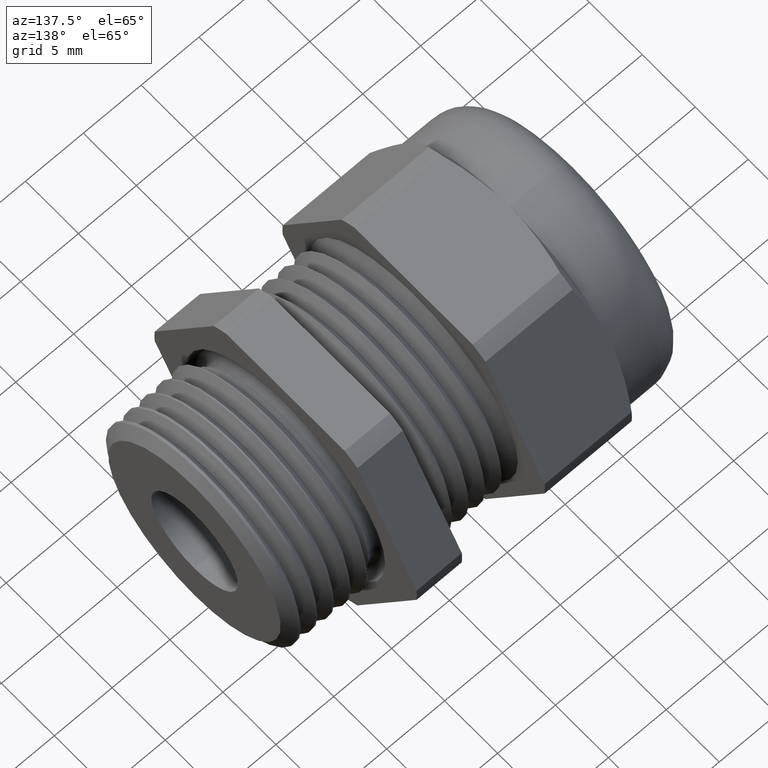
[diagram: clean part render]
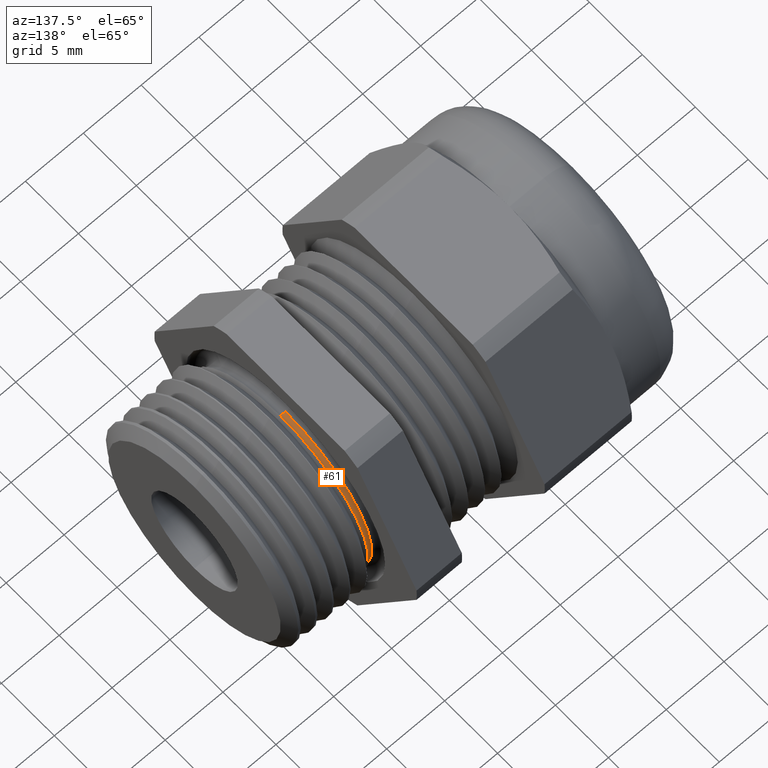
[diagram: same view with one face highlighted and labeled with its STEP entity id]
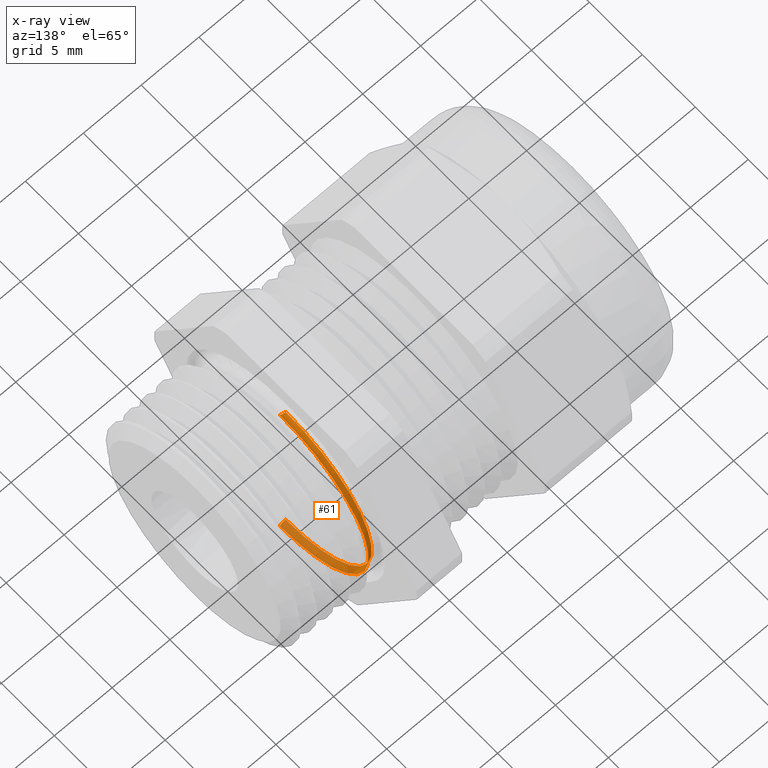
[diagram: x-ray of the same camera — body ghosted, the highlighted face saturated]
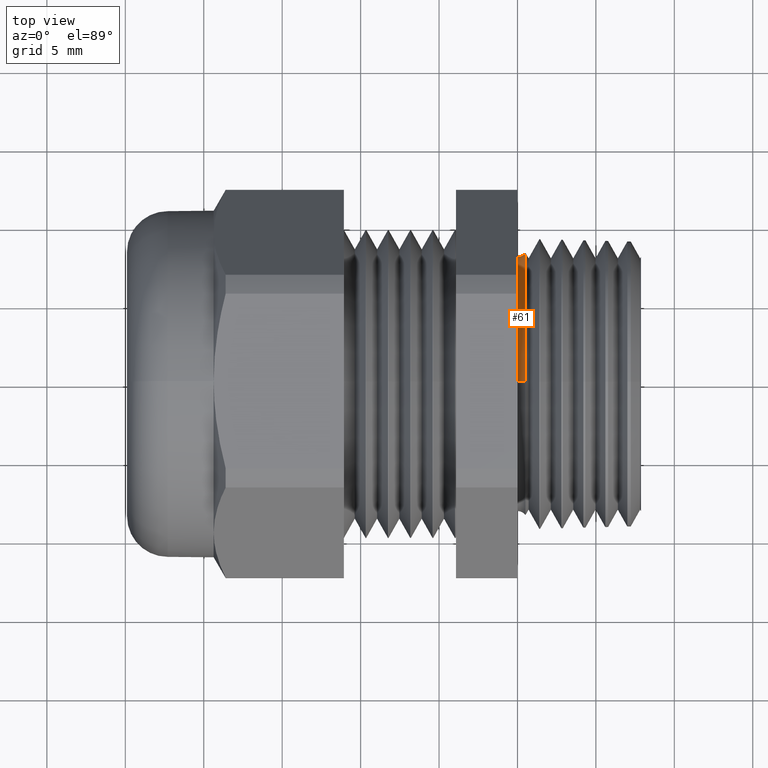
[diagram: same view with one face highlighted and labeled with its STEP entity id]
A machine part, auxiliary view. The second image highlights one B-rep face of the part: STEP entity #61.
The next image is the same camera in x-ray: the body ghosted, the highlighted face saturated — about 42% of this face is hidden behind the body in this view.
A second angle (top view) of the same face is appended — the face is thin or edge-on in the first view.
In plain terms, the highlighted toroidal blend (fillet) surface has major radius 8.763 mm and minor (blend) radius 0.635 mm.
Its self-contained STEP definition (entity closure, byte-faithful):
#2 = ORIENTED_EDGE ( 'NONE', *, *, #3476, .F. ) ;
#14 = ORIENTED_EDGE ( 'NONE', *, *, #15, .T. ) ;
#15 = EDGE_CURVE ( 'NONE', #73, #38, #979, .T. ) ;
#38 = VERTEX_POINT ( 'NONE', #992 ) ;
#61 = ADVANCED_FACE ( 'NONE', ( #1079 ), #1078, .F. ) ;
#70 = ORIENTED_EDGE ( 'NONE', *, *, #71, .T. ) ;
#71 = EDGE_CURVE ( 'NONE', #72, #73, #1063, .T. ) ;
#72 = VERTEX_POINT ( 'NONE', #1058 ) ;
#73 = VERTEX_POINT ( 'NONE', #1057 ) ;
#84 = EDGE_LOOP ( 'NONE', ( #70, #14, #2, #3479 ) ) ;
#975 = DIRECTION ( 'NONE',  ( 0.0000000000000000000, 0.0000000000000000000, -1.000000000000000000 ) ) ;
#976 = DIRECTION ( 'NONE',  ( 1.000000000000000000, 0.0000000000000000000, 0.0000000000000000000 ) ) ;
#977 = CARTESIAN_POINT ( 'NONE',  ( -3.061616997868362800E-018, 0.0000000000000000000, 0.0000000000000000000 ) ) ;
#978 = AXIS2_PLACEMENT_3D ( 'NONE', #977, #976, #975 ) ;
#979 = CIRCLE ( 'NONE', #978, 0.3200000000000001200 ) ;
#992 = CARTESIAN_POINT ( 'NONE',  ( -3.061616997868358500E-018, 3.918869757271532700E-017, 0.3200000000000001200 ) ) ;
#1057 = CARTESIAN_POINT ( 'NONE',  ( -3.061616997868358500E-018, 0.0000000000000000000, -0.3200000000000001200 ) ) ;
#1058 = CARTESIAN_POINT ( 'NONE',  ( 0.02011669327523381600, 4.043255481433096800E-017, -0.3301568651670153700 ) ) ;
#1059 = DIRECTION ( 'NONE',  ( 0.0000000000000000000, 0.0000000000000000000, -1.000000000000000000 ) ) ;
#1060 = DIRECTION ( 'NONE',  ( 0.0000000000000000000, -1.000000000000000000, 0.0000000000000000000 ) ) ;
#1061 = CARTESIAN_POINT ( 'NONE',  ( 0.0000000000000000000, 0.0000000000000000000, -0.3450000000000000300 ) ) ;
#1062 = AXIS2_PLACEMENT_3D ( 'NONE', #1061, #1060, #1059 ) ;
#1063 = CIRCLE ( 'NONE', #1062, 0.02499999999999987000 ) ;
#1073 = DIRECTION ( 'NONE',  ( 0.0000000000000000000, 0.0000000000000000000, -1.000000000000000000 ) ) ;
#1074 = DIRECTION ( 'NONE',  ( 1.000000000000000000, 0.0000000000000000000, 0.0000000000000000000 ) ) ;
#1075 = CARTESIAN_POINT ( 'NONE',  ( 0.0000000000000000000, 0.0000000000000000000, 0.0000000000000000000 ) ) ;
#1076 = AXIS2_PLACEMENT_3D ( 'NONE', #1075, #1074, #1073 ) ;
#1078 = TOROIDAL_SURFACE ( 'NONE', #1076, 0.3450000000000000300, 0.02499999999999983500 ) ;
#1079 = FACE_OUTER_BOUND ( 'NONE', #84, .T. ) ;
#2978 = DIRECTION ( 'NONE',  ( 0.0000000000000000000, 1.224646799147352200E-016, 1.000000000000000000 ) ) ;
#2979 = DIRECTION ( 'NONE',  ( 0.0000000000000000000, 1.000000000000000000, -1.224646799147353200E-016 ) ) ;
#2980 = CARTESIAN_POINT ( 'NONE',  ( 0.0000000000000000000, 4.225031457058368500E-017, 0.3450000000000000300 ) ) ;
#2981 = AXIS2_PLACEMENT_3D ( 'NONE', #2980, #2979, #2978 ) ;
#2982 = CIRCLE ( 'NONE', #2981, 0.02499999999999987000 ) ;
#2983 = CARTESIAN_POINT ( 'NONE',  ( 0.02011669327523381600, 0.0000000000000000000, 0.0000000000000000000 ) ) ;
#2984 = CARTESIAN_POINT ( 'NONE',  ( 0.02011669327523381600, 0.0000000000000000000, 0.3301568651670153700 ) ) ;
#3038 = DIRECTION ( 'NONE',  ( 0.0000000000000000000, 0.0000000000000000000, 1.000000000000000000 ) ) ;
#3039 = DIRECTION ( 'NONE',  ( 1.000000000000000000, 0.0000000000000000000, 0.0000000000000000000 ) ) ;
#3040 = AXIS2_PLACEMENT_3D ( 'NONE', #2983, #3039, #3038 ) ;
#3041 = CIRCLE ( 'NONE', #3040, 0.3301568651670153700 ) ;
#3475 = VERTEX_POINT ( 'NONE', #2984 ) ;
#3476 = EDGE_CURVE ( 'NONE', #3475, #38, #2982, .T. ) ;
#3477 = EDGE_CURVE ( 'NONE', #72, #3475, #3041, .T. ) ;
#3479 = ORIENTED_EDGE ( 'NONE', *, *, #3477, .F. ) ;